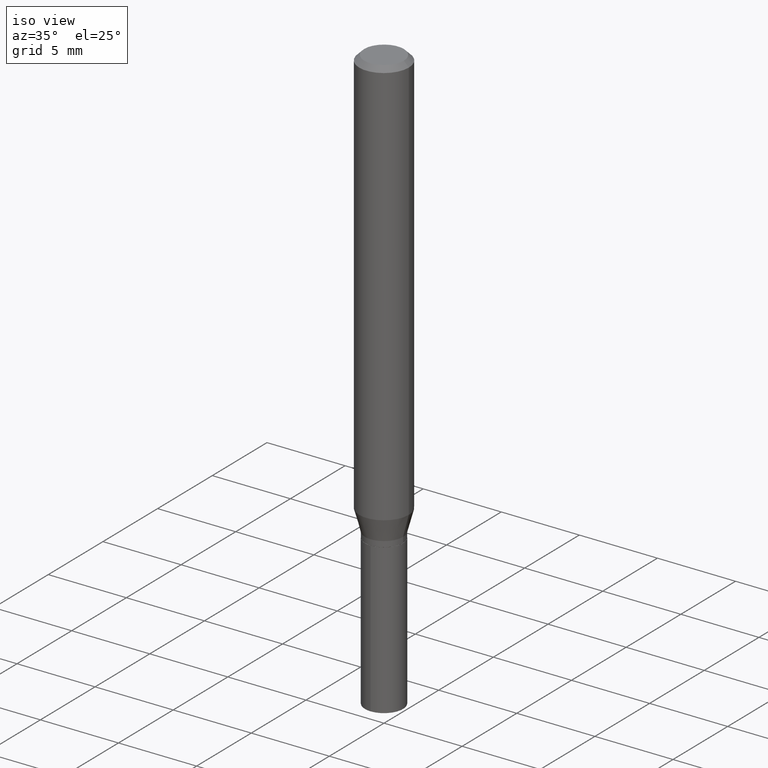
[diagram: clean part render]
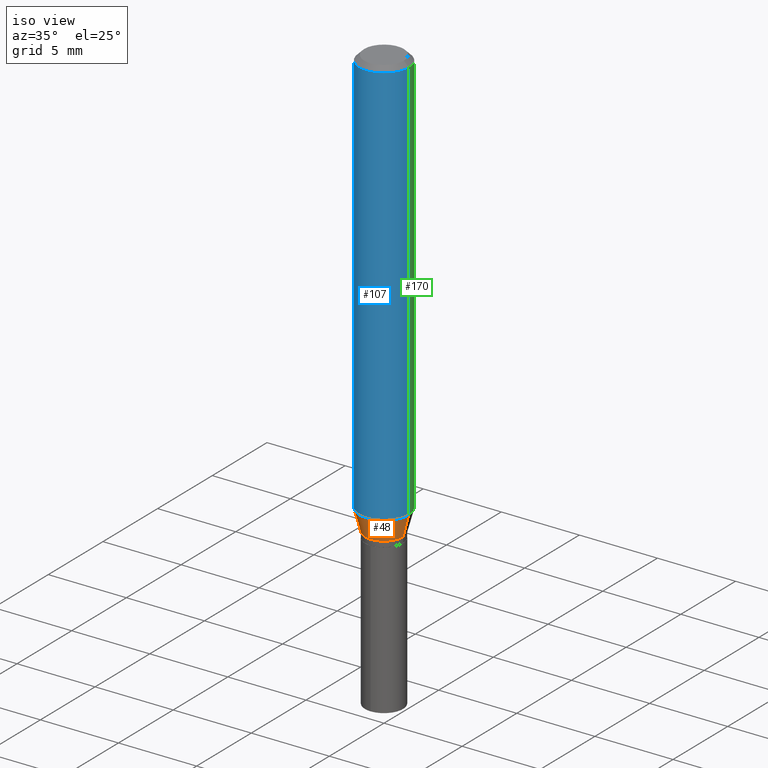
[diagram: same view with three faces highlighted in distinct colors, each labeled with its STEP entity id]
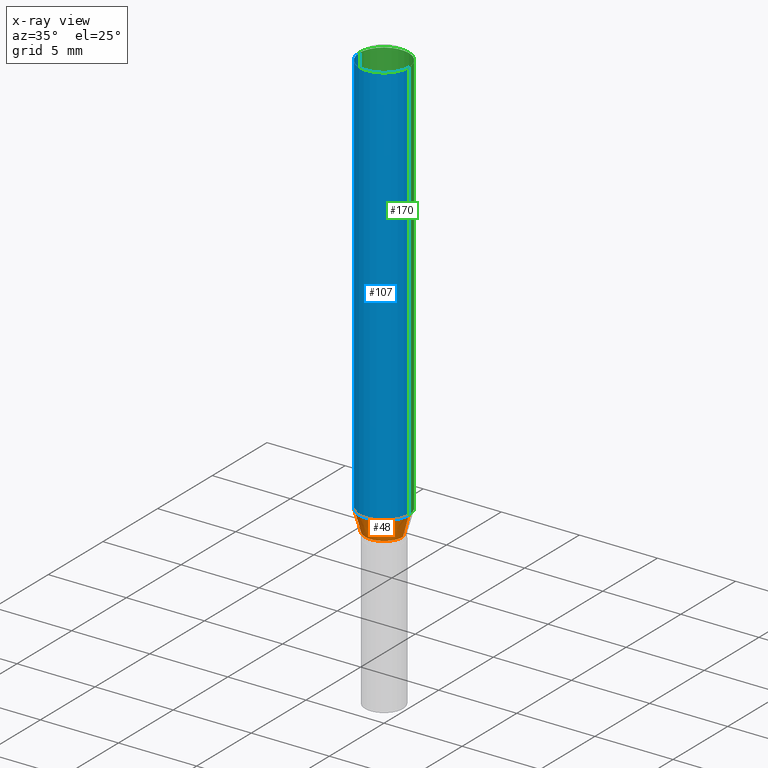
[diagram: x-ray of the same camera — body ghosted, the three highlighted faces saturated]
A machine part, iso view with three faces highlighted in distinct colors.
The next image is the same camera in x-ray (body ghosted, the three faces saturated) — at least one of them is partly hidden behind the body in this view.
Their STEP definitions:

[orange] entity #48 — the highlighted conical surface has half-angle 15 deg.
#6 = CARTESIAN_POINT ( 'NONE',  ( -0.04800000000000000100, -3.449291628283270434E-15, -1.085600000000000120 ) ) ;
#10 = ORIENTED_EDGE ( 'NONE', *, *, #348, .T. ) ;
#13 = VECTOR ( 'NONE', #78, 39.37007874015747433 ) ;
#17 = CARTESIAN_POINT ( 'NONE',  ( 0.06250000000000012490, -4.037846715425012745E-15, -1.031485263290250920 ) ) ;
#48 = ADVANCED_FACE ( 'NONE', ( #209 ), #101, .T. ) ;
#76 = DIRECTION ( 'NONE',  ( 1.000000000000000000, -6.982962677686264344E-15, 0.000000000000000000 ) ) ;
#78 = DIRECTION ( 'NONE',  ( -0.2588190451025214611, 5.211531920934551042E-15, 0.9659258262890682012 ) ) ;
#84 = EDGE_CURVE ( 'NONE', #173, #324, #451, .T. ) ;
#91 = CARTESIAN_POINT ( 'NONE',  ( -0.06250000000000012490, -3.157322338219556487E-15, -1.031485263290250920 ) ) ;
#101 = CONICAL_SURFACE ( 'NONE', #231, 0.04800000000000000100, 0.2617993877991501295 ) ;
#106 = ORIENTED_EDGE ( 'NONE', *, *, #442, .T. ) ;
#110 = CARTESIAN_POINT ( 'NONE',  ( 2.522465035415971570E-29, -3.601411548069620286E-15, -1.031485263290250920 ) ) ;
#118 = EDGE_CURVE ( 'NONE', #324, #220, #406, .T. ) ;
#128 = ORIENTED_EDGE ( 'NONE', *, *, #84, .F. ) ;
#131 = VERTEX_POINT ( 'NONE', #154 ) ;
#143 = DIRECTION ( 'NONE',  ( 1.000000000000000000, -6.982962677686272233E-15, 0.000000000000000000 ) ) ;
#154 = CARTESIAN_POINT ( 'NONE',  ( 0.04800000000000000100, -4.125534349977059739E-15, -1.085600000000000120 ) ) ;
#172 = CARTESIAN_POINT ( 'NONE',  ( 0.04800000000000000100, -4.125534349977059739E-15, -1.085600000000000120 ) ) ;
#173 = VERTEX_POINT ( 'NONE', #194 ) ;
#188 = DIRECTION ( 'NONE',  ( -2.445468806185136597E-29, 3.491481338843145583E-15, 1.000000000000000000 ) ) ;
#194 = CARTESIAN_POINT ( 'NONE',  ( -0.04800000000000000100, -3.473557423588230517E-15, -1.085600000000000120 ) ) ;
#197 = AXIS2_PLACEMENT_3D ( 'NONE', #387, #306, #427 ) ;
#209 = FACE_OUTER_BOUND ( 'NONE', #275, .T. ) ;
#220 = VERTEX_POINT ( 'NONE', #17 ) ;
#231 = AXIS2_PLACEMENT_3D ( 'NONE', #421, #488, #143 ) ;
#254 = ORIENTED_EDGE ( 'NONE', *, *, #118, .F. ) ;
#275 = EDGE_LOOP ( 'NONE', ( #128, #10, #106, #254 ) ) ;
#291 = DIRECTION ( 'NONE',  ( 0.2588190451025214611, 1.565188264969621573E-15, 0.9659258262890682012 ) ) ;
#306 = DIRECTION ( 'NONE',  ( -2.445468806185136597E-29, 3.491481338843145583E-15, 1.000000000000000000 ) ) ;
#311 = AXIS2_PLACEMENT_3D ( 'NONE', #110, #188, #76 ) ;
#324 = VERTEX_POINT ( 'NONE', #91 ) ;
#345 = CIRCLE ( 'NONE', #197, 0.04800000000000000100 ) ;
#348 = EDGE_CURVE ( 'NONE', #173, #131, #345, .T. ) ;
#387 = CARTESIAN_POINT ( 'NONE',  ( 2.654800935994584637E-29, -3.790352141448118432E-15, -1.085600000000000120 ) ) ;
#400 = LINE ( 'NONE', #172, #424 ) ;
#406 = CIRCLE ( 'NONE', #311, 0.06250000000000012490 ) ;
#421 = CARTESIAN_POINT ( 'NONE',  ( 2.654800935994584637E-29, -3.790352141448118432E-15, -1.085600000000000120 ) ) ;
#424 = VECTOR ( 'NONE', #291, 39.37007874015747433 ) ;
#427 = DIRECTION ( 'NONE',  ( 1.000000000000000000, -6.982962677686272233E-15, 0.000000000000000000 ) ) ;
#442 = EDGE_CURVE ( 'NONE', #131, #220, #400, .T. ) ;
#451 = LINE ( 'NONE', #6, #13 ) ;
#488 = DIRECTION ( 'NONE',  ( -2.445468806185136597E-29, 3.491481338843145583E-15, 1.000000000000000000 ) ) ;

[blue] entity #107 — the highlighted cylindrical surface (edge-blend (fillet) strip) has radius 1.5875 mm, axis along (-0, 0, 1).
#4 = DIRECTION ( 'NONE',  ( 1.000000000000000000, -6.982962677686266711E-15, 0.000000000000000000 ) ) ;
#17 = CARTESIAN_POINT ( 'NONE',  ( 0.06250000000000012490, -4.037846715425012745E-15, -1.031485263290250920 ) ) ;
#25 = CARTESIAN_POINT ( 'NONE',  ( 0.06250000000000000000, -4.800786840909313294E-16, -0.01250000000000009090 ) ) ;
#31 = DIRECTION ( 'NONE',  ( -2.445468806185136877E-29, 3.491481338843145188E-15, 1.000000000000000000 ) ) ;
#37 = DIRECTION ( 'NONE',  ( 1.000000000000000000, -6.982962677686266711E-15, 4.876176775795935793E-29 ) ) ;
#75 = EDGE_CURVE ( 'NONE', #324, #478, #415, .T. ) ;
#76 = DIRECTION ( 'NONE',  ( 1.000000000000000000, -6.982962677686264344E-15, 0.000000000000000000 ) ) ;
#83 = DIRECTION ( 'NONE',  ( -2.445468806185136597E-29, 3.491481338843145583E-15, 1.000000000000000000 ) ) ;
#88 = VECTOR ( 'NONE', #375, 39.37007874015748143 ) ;
#91 = CARTESIAN_POINT ( 'NONE',  ( -0.06250000000000012490, -3.157322338219556487E-15, -1.031485263290250920 ) ) ;
#107 = ADVANCED_FACE ( 'NONE', ( #453 ), #346, .T. ) ;
#110 = CARTESIAN_POINT ( 'NONE',  ( 2.522465035415971570E-29, -3.601411548069620286E-15, -1.031485263290250920 ) ) ;
#118 = EDGE_CURVE ( 'NONE', #324, #220, #406, .T. ) ;
#150 = CARTESIAN_POINT ( 'NONE',  ( 0.000000000000000000, 0.000000000000000000, 0.000000000000000000 ) ) ;
#156 = EDGE_CURVE ( 'NONE', #220, #168, #303, .T. ) ;
#168 = VERTEX_POINT ( 'NONE', #25 ) ;
#178 = ORIENTED_EDGE ( 'NONE', *, *, #118, .T. ) ;
#188 = DIRECTION ( 'NONE',  ( -2.445468806185136597E-29, 3.491481338843145583E-15, 1.000000000000000000 ) ) ;
#211 = ORIENTED_EDGE ( 'NONE', *, *, #75, .F. ) ;
#212 = ORIENTED_EDGE ( 'NONE', *, *, #353, .F. ) ;
#220 = VERTEX_POINT ( 'NONE', #17 ) ;
#235 = ORIENTED_EDGE ( 'NONE', *, *, #156, .T. ) ;
#269 = CARTESIAN_POINT ( 'NONE',  ( 3.056836007731443167E-31, -4.364351673553963533E-17, -0.01250000000000009090 ) ) ;
#293 = CARTESIAN_POINT ( 'NONE',  ( -0.06250000000000006939, 4.440892098500631092E-16, -3.074334431409319267E-30 ) ) ;
#298 = AXIS2_PLACEMENT_3D ( 'NONE', #269, #83, #4 ) ;
#303 = LINE ( 'NONE', #422, #445 ) ;
#311 = AXIS2_PLACEMENT_3D ( 'NONE', #110, #188, #76 ) ;
#324 = VERTEX_POINT ( 'NONE', #91 ) ;
#326 = AXIS2_PLACEMENT_3D ( 'NONE', #150, #343, #37 ) ;
#330 = EDGE_LOOP ( 'NONE', ( #211, #178, #235, #212 ) ) ;
#343 = DIRECTION ( 'NONE',  ( -2.445468806185136597E-29, 3.491481338843145583E-15, 1.000000000000000000 ) ) ;
#346 = CYLINDRICAL_SURFACE ( 'NONE', #326, 0.06250000000000006939 ) ;
#353 = EDGE_CURVE ( 'NONE', #478, #168, #459, .T. ) ;
#375 = DIRECTION ( 'NONE',  ( -2.445468806185136877E-29, 3.491481338843145188E-15, 1.000000000000000000 ) ) ;
#406 = CIRCLE ( 'NONE', #311, 0.06250000000000012490 ) ;
#411 = CARTESIAN_POINT ( 'NONE',  ( -0.06250000000000000000, -1.378438322552516124E-15, -0.01250000000000009090 ) ) ;
#415 = LINE ( 'NONE', #293, #88 ) ;
#422 = CARTESIAN_POINT ( 'NONE',  ( 0.06250000000000006939, -4.364351673553921624E-16, 3.047610484872463374E-30 ) ) ;
#445 = VECTOR ( 'NONE', #31, 39.37007874015748143 ) ;
#453 = FACE_OUTER_BOUND ( 'NONE', #330, .T. ) ;
#459 = CIRCLE ( 'NONE', #298, 0.06250000000000000000 ) ;
#478 = VERTEX_POINT ( 'NONE', #411 ) ;

[green] entity #170 — the highlighted cylindrical surface (edge-blend (fillet) strip) has radius 1.5875 mm, axis along (-0, 0, 1).
#17 = CARTESIAN_POINT ( 'NONE',  ( 0.06250000000000012490, -4.037846715425012745E-15, -1.031485263290250920 ) ) ;
#25 = CARTESIAN_POINT ( 'NONE',  ( 0.06250000000000000000, -4.800786840909313294E-16, -0.01250000000000009090 ) ) ;
#27 = DIRECTION ( 'NONE',  ( 1.000000000000000000, -6.982962677686266711E-15, 0.000000000000000000 ) ) ;
#28 = AXIS2_PLACEMENT_3D ( 'NONE', #327, #377, #339 ) ;
#31 = DIRECTION ( 'NONE',  ( -2.445468806185136877E-29, 3.491481338843145188E-15, 1.000000000000000000 ) ) ;
#49 = CARTESIAN_POINT ( 'NONE',  ( 2.522465035415971570E-29, -3.601411548069620286E-15, -1.031485263290250920 ) ) ;
#60 = DIRECTION ( 'NONE',  ( 1.000000000000000000, -6.982962677686264344E-15, 0.000000000000000000 ) ) ;
#62 = CARTESIAN_POINT ( 'NONE',  ( 3.056836007731443167E-31, -4.364351673553963533E-17, -0.01250000000000009090 ) ) ;
#72 = CIRCLE ( 'NONE', #307, 0.06250000000000000000 ) ;
#75 = EDGE_CURVE ( 'NONE', #324, #478, #415, .T. ) ;
#86 = ORIENTED_EDGE ( 'NONE', *, *, #294, .T. ) ;
#88 = VECTOR ( 'NONE', #375, 39.37007874015748143 ) ;
#91 = CARTESIAN_POINT ( 'NONE',  ( -0.06250000000000012490, -3.157322338219556487E-15, -1.031485263290250920 ) ) ;
#97 = DIRECTION ( 'NONE',  ( -2.445468806185136597E-29, 3.491481338843145583E-15, 1.000000000000000000 ) ) ;
#99 = DIRECTION ( 'NONE',  ( -2.445468806185136597E-29, 3.491481338843145583E-15, 1.000000000000000000 ) ) ;
#124 = FACE_OUTER_BOUND ( 'NONE', #475, .T. ) ;
#144 = AXIS2_PLACEMENT_3D ( 'NONE', #49, #99, #60 ) ;
#156 = EDGE_CURVE ( 'NONE', #220, #168, #303, .T. ) ;
#166 = ORIENTED_EDGE ( 'NONE', *, *, #460, .F. ) ;
#168 = VERTEX_POINT ( 'NONE', #25 ) ;
#170 = ADVANCED_FACE ( 'NONE', ( #124 ), #246, .T. ) ;
#214 = ORIENTED_EDGE ( 'NONE', *, *, #156, .F. ) ;
#220 = VERTEX_POINT ( 'NONE', #17 ) ;
#246 = CYLINDRICAL_SURFACE ( 'NONE', #28, 0.06250000000000006939 ) ;
#293 = CARTESIAN_POINT ( 'NONE',  ( -0.06250000000000006939, 4.440892098500631092E-16, -3.074334431409319267E-30 ) ) ;
#294 = EDGE_CURVE ( 'NONE', #220, #324, #357, .T. ) ;
#303 = LINE ( 'NONE', #422, #445 ) ;
#307 = AXIS2_PLACEMENT_3D ( 'NONE', #62, #97, #27 ) ;
#324 = VERTEX_POINT ( 'NONE', #91 ) ;
#327 = CARTESIAN_POINT ( 'NONE',  ( 0.000000000000000000, 0.000000000000000000, 0.000000000000000000 ) ) ;
#339 = DIRECTION ( 'NONE',  ( 1.000000000000000000, -6.982962677686266711E-15, 4.876176775795935793E-29 ) ) ;
#357 = CIRCLE ( 'NONE', #144, 0.06250000000000012490 ) ;
#375 = DIRECTION ( 'NONE',  ( -2.445468806185136877E-29, 3.491481338843145188E-15, 1.000000000000000000 ) ) ;
#377 = DIRECTION ( 'NONE',  ( -2.445468806185136597E-29, 3.491481338843145583E-15, 1.000000000000000000 ) ) ;
#411 = CARTESIAN_POINT ( 'NONE',  ( -0.06250000000000000000, -1.378438322552516124E-15, -0.01250000000000009090 ) ) ;
#415 = LINE ( 'NONE', #293, #88 ) ;
#422 = CARTESIAN_POINT ( 'NONE',  ( 0.06250000000000006939, -4.364351673553921624E-16, 3.047610484872463374E-30 ) ) ;
#433 = ORIENTED_EDGE ( 'NONE', *, *, #75, .T. ) ;
#445 = VECTOR ( 'NONE', #31, 39.37007874015748143 ) ;
#460 = EDGE_CURVE ( 'NONE', #168, #478, #72, .T. ) ;
#475 = EDGE_LOOP ( 'NONE', ( #86, #433, #166, #214 ) ) ;
#478 = VERTEX_POINT ( 'NONE', #411 ) ;